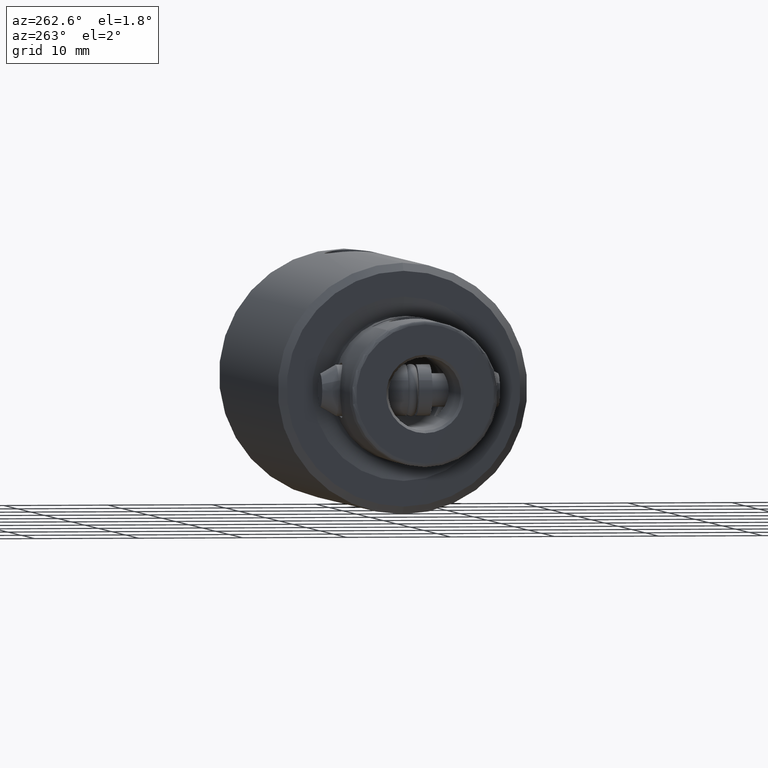
[diagram: clean part render]
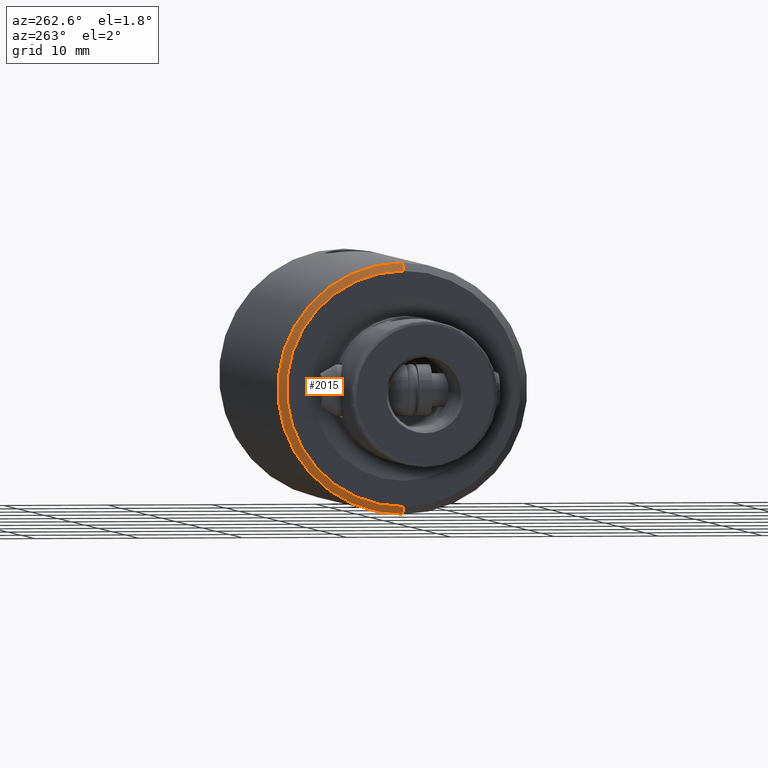
[diagram: same view with one face highlighted and labeled with its STEP entity id]
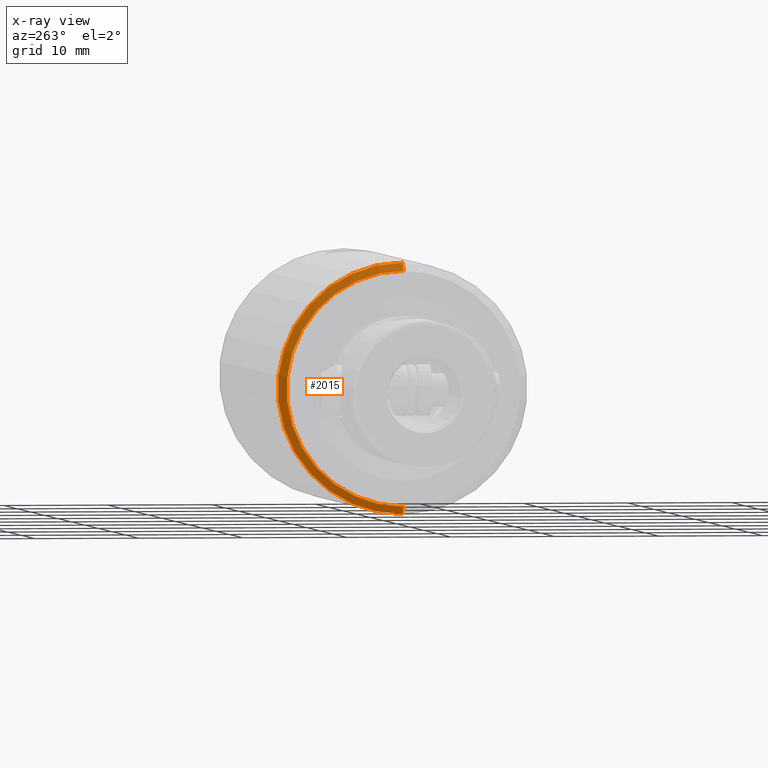
[diagram: x-ray of the same camera — body ghosted, the highlighted face saturated]
A machine part, auxiliary view. The second image highlights one B-rep face of the part: STEP entity #2015.
The next image is the same camera in x-ray: the body ghosted, the highlighted face saturated — about 0% of this face is hidden behind the body in this view.
In plain terms, the highlighted conical surface has half-angle 45 deg.
Its self-contained STEP definition (entity closure, byte-faithful):
#68 = VERTEX_POINT ( 'NONE', #912 ) ;
#76 = VECTOR ( 'NONE', #2172, 1000.000000000000100 ) ;
#93 = DIRECTION ( 'NONE',  ( 0.0000000000000000000, 0.0000000000000000000, -1.000000000000000000 ) ) ;
#95 = DIRECTION ( 'NONE',  ( 1.000000000000000000, 0.0000000000000000000, 0.0000000000000000000 ) ) ;
#213 = CARTESIAN_POINT ( 'NONE',  ( -11.25000000000000500, 0.0000000000000000000, 45.00000000000000000 ) ) ;
#223 = ORIENTED_EDGE ( 'NONE', *, *, #3045, .F. ) ;
#242 = CIRCLE ( 'NONE', #3810, 11.25000000000000500 ) ;
#254 = ORIENTED_EDGE ( 'NONE', *, *, #4171, .F. ) ;
#321 = CARTESIAN_POINT ( 'NONE',  ( 0.0000000000000000000, 0.0000000000000000000, 45.00000000000000000 ) ) ;
#618 = VERTEX_POINT ( 'NONE', #1891 ) ;
#724 = DIRECTION ( 'NONE',  ( 0.0000000000000000000, 0.0000000000000000000, -1.000000000000000000 ) ) ;
#759 = CIRCLE ( 'NONE', #2851, 12.00000000000000200 ) ;
#912 = CARTESIAN_POINT ( 'NONE',  ( 11.25000000000000500, 1.423651904008798500E-015, 45.00000000000000000 ) ) ;
#1796 = CARTESIAN_POINT ( 'NONE',  ( 11.25000000000000500, 1.377727649040773000E-015, 45.00000000000000000 ) ) ;
#1849 = CARTESIAN_POINT ( 'NONE',  ( -11.25000000000000500, 0.0000000000000000000, 45.00000000000000000 ) ) ;
#1879 = EDGE_CURVE ( 'NONE', #68, #2612, #242, .T. ) ;
#1891 = CARTESIAN_POINT ( 'NONE',  ( -12.00000000000000200, 0.0000000000000000000, 44.25000000000000000 ) ) ;
#2015 = ADVANCED_FACE ( 'NONE', ( #2547 ), #2358, .T. ) ;
#2038 = CARTESIAN_POINT ( 'NONE',  ( 0.0000000000000000000, 0.0000000000000000000, 44.25000000000000000 ) ) ;
#2042 = DIRECTION ( 'NONE',  ( 0.0000000000000000000, 0.0000000000000000000, 1.000000000000000000 ) ) ;
#2149 = EDGE_LOOP ( 'NONE', ( #2546, #3530, #223, #254 ) ) ;
#2172 = DIRECTION ( 'NONE',  ( -0.7071067811865459100, 0.0000000000000000000, -0.7071067811865491300 ) ) ;
#2266 = CARTESIAN_POINT ( 'NONE',  ( 12.00000000000000200, 1.469576158976823900E-015, 44.25000000000000000 ) ) ;
#2358 = CONICAL_SURFACE ( 'NONE', #2442, 11.25000000000000500, 0.7853981633974459500 ) ;
#2376 = DIRECTION ( 'NONE',  ( 1.000000000000000000, 0.0000000000000000000, 0.0000000000000000000 ) ) ;
#2442 = AXIS2_PLACEMENT_3D ( 'NONE', #321, #724, #3944 ) ;
#2546 = ORIENTED_EDGE ( 'NONE', *, *, #1879, .F. ) ;
#2547 = FACE_OUTER_BOUND ( 'NONE', #2149, .T. ) ;
#2612 = VERTEX_POINT ( 'NONE', #213 ) ;
#2851 = AXIS2_PLACEMENT_3D ( 'NONE', #2038, #93, #2376 ) ;
#3045 = EDGE_CURVE ( 'NONE', #618, #3426, #759, .T. ) ;
#3334 = LINE ( 'NONE', #1849, #76 ) ;
#3426 = VERTEX_POINT ( 'NONE', #2266 ) ;
#3433 = DIRECTION ( 'NONE',  ( 0.7071067811865459100, 8.659560562354911900E-017, -0.7071067811865491300 ) ) ;
#3530 = ORIENTED_EDGE ( 'NONE', *, *, #4004, .T. ) ;
#3810 = AXIS2_PLACEMENT_3D ( 'NONE', #3999, #2042, #95 ) ;
#3829 = LINE ( 'NONE', #1796, #3952 ) ;
#3944 = DIRECTION ( 'NONE',  ( -1.000000000000000000, 0.0000000000000000000, 0.0000000000000000000 ) ) ;
#3952 = VECTOR ( 'NONE', #3433, 1000.000000000000100 ) ;
#3999 = CARTESIAN_POINT ( 'NONE',  ( 0.0000000000000000000, 0.0000000000000000000, 45.00000000000000000 ) ) ;
#4004 = EDGE_CURVE ( 'NONE', #68, #3426, #3829, .T. ) ;
#4171 = EDGE_CURVE ( 'NONE', #2612, #618, #3334, .T. ) ;